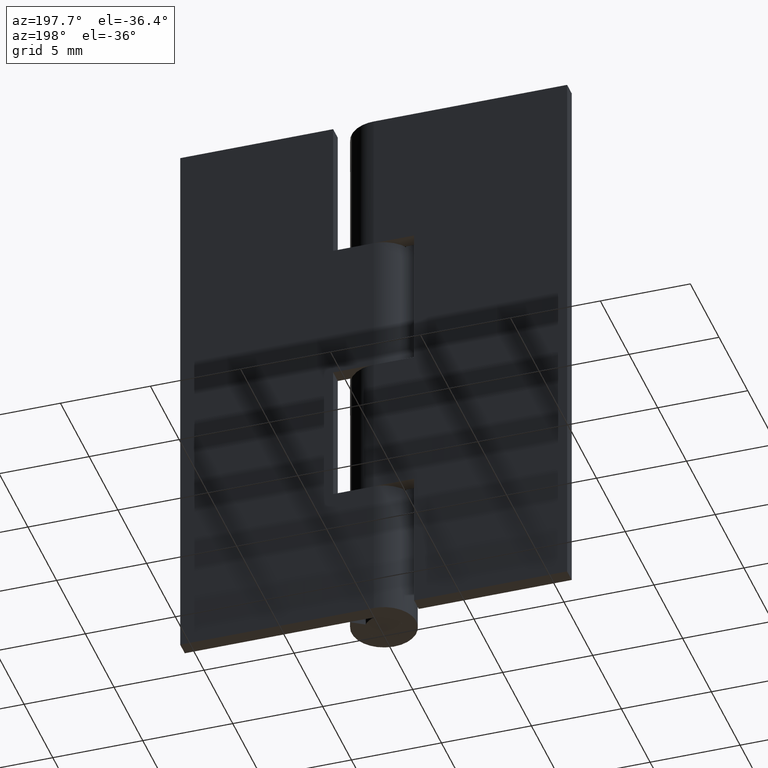
[diagram: clean part render]
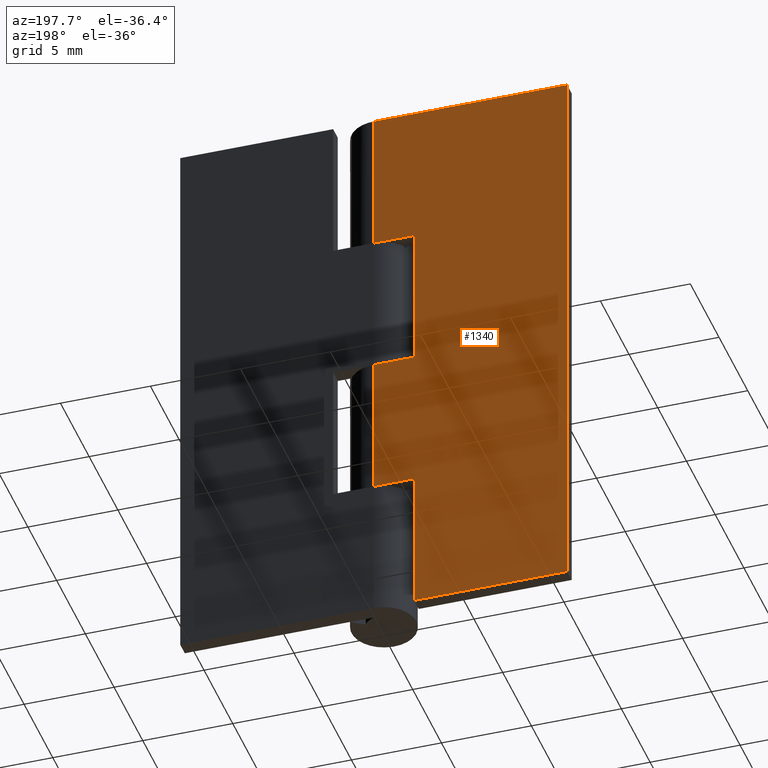
[diagram: same view with one face highlighted and labeled with its STEP entity id]
A machine part, auxiliary view. The second image highlights one B-rep face of the part: STEP entity #1340.
In plain terms, the highlighted face is a freeform B-spline surface patch.
Its self-contained STEP definition (entity closure, byte-faithful):
#739=CARTESIAN_POINT('',(-2.250000000000000,1.800003000000050,24.0));
#740=VERTEX_POINT('',#739);
#746=CARTESIAN_POINT('',(0.0,1.800003000000050,24.0));
#747=VERTEX_POINT('',#746);
#748=CARTESIAN_POINT('',(0.0,1.800003000000050,24.0));
#749=CARTESIAN_POINT('',(-2.250000000000000,1.800003000000050,24.0));
#750=QUASI_UNIFORM_CURVE('',1,(#748,#749),.UNSPECIFIED.,.F.,.U.);
#751=EDGE_CURVE('',#747,#740,#750,.T.);
#845=CARTESIAN_POINT('',(0.0,1.800003000000050,16.0));
#846=VERTEX_POINT('',#845);
#866=CARTESIAN_POINT('',(-2.250000000000000,1.800003000000050,16.0));
#867=VERTEX_POINT('',#866);
#868=CARTESIAN_POINT('',(-2.250000000000000,1.800003000000050,16.0));
#869=CARTESIAN_POINT('',(0.0,1.800003000000050,16.0));
#870=QUASI_UNIFORM_CURVE('',1,(#868,#869),.UNSPECIFIED.,.F.,.U.);
#871=EDGE_CURVE('',#867,#846,#870,.T.);
#892=CARTESIAN_POINT('',(-2.250000000000000,1.800003000000050,24.0));
#893=CARTESIAN_POINT('',(-2.250000000000000,1.800003000000050,16.0));
#894=QUASI_UNIFORM_CURVE('',1,(#892,#893),.UNSPECIFIED.,.F.,.U.);
#895=EDGE_CURVE('',#740,#867,#894,.T.);
#915=CARTESIAN_POINT('',(-2.250000000000000,1.800003000000050,0.0));
#916=VERTEX_POINT('',#915);
#922=CARTESIAN_POINT('',(-2.250000000000000,1.800003000000050,8.0));
#923=VERTEX_POINT('',#922);
#924=CARTESIAN_POINT('',(-2.250000000000000,1.800003000000050,8.0));
#925=CARTESIAN_POINT('',(-2.250000000000000,1.800003000000050,0.0));
#926=QUASI_UNIFORM_CURVE('',1,(#924,#925),.UNSPECIFIED.,.F.,.U.);
#927=EDGE_CURVE('',#923,#916,#926,.T.);
#950=CARTESIAN_POINT('',(0.0,1.800003000000050,8.0));
#951=VERTEX_POINT('',#950);
#952=CARTESIAN_POINT('',(0.0,1.800003000000050,8.0));
#953=CARTESIAN_POINT('',(-2.250000000000000,1.800003000000050,8.0));
#954=QUASI_UNIFORM_CURVE('',1,(#952,#953),.UNSPECIFIED.,.F.,.U.);
#955=EDGE_CURVE('',#951,#923,#954,.T.);
#1012=CARTESIAN_POINT('',(1.102148E-016,1.800003000000000,32.0));
#1013=VERTEX_POINT('',#1012);
#1014=CARTESIAN_POINT('',(-10.750000000000000,1.800003000000000,32.0));
#1015=VERTEX_POINT('',#1014);
#1016=CARTESIAN_POINT('',(1.102148E-016,1.800003000000000,32.0));
#1017=CARTESIAN_POINT('',(-10.750000000000000,1.800003000000000,32.0));
#1018=QUASI_UNIFORM_CURVE('',1,(#1016,#1017),.UNSPECIFIED.,.F.,.U.);
#1019=EDGE_CURVE('',#1013,#1015,#1018,.T.);
#1090=CARTESIAN_POINT('',(-10.750000000000000,1.800003000000000,0.0));
#1091=VERTEX_POINT('',#1090);
#1105=CARTESIAN_POINT('',(-10.750000000000000,1.800003000000000,32.0));
#1106=CARTESIAN_POINT('',(-10.750000000000000,1.800003000000000,0.0));
#1107=QUASI_UNIFORM_CURVE('',1,(#1105,#1106),.UNSPECIFIED.,.F.,.U.);
#1108=EDGE_CURVE('',#1015,#1091,#1107,.T.);
#1125=CARTESIAN_POINT('',(-2.250000000000000,1.800003000000050,0.0));
#1126=CARTESIAN_POINT('',(-10.750000000000000,1.800003000000000,0.0));
#1127=QUASI_UNIFORM_CURVE('',1,(#1125,#1126),.UNSPECIFIED.,.F.,.U.);
#1128=EDGE_CURVE('',#916,#1091,#1127,.T.);
#1156=CARTESIAN_POINT('',(1.102148E-016,1.800003000000000,32.0));
#1157=CARTESIAN_POINT('',(0.0,1.800003000000050,24.0));
#1158=QUASI_UNIFORM_CURVE('',1,(#1156,#1157),.UNSPECIFIED.,.F.,.U.);
#1159=EDGE_CURVE('',#1013,#747,#1158,.T.);
#1199=CARTESIAN_POINT('',(0.0,1.800003000000050,16.0));
#1200=CARTESIAN_POINT('',(0.0,1.800003000000050,8.0));
#1201=QUASI_UNIFORM_CURVE('',1,(#1199,#1200),.UNSPECIFIED.,.F.,.U.);
#1202=EDGE_CURVE('',#846,#951,#1201,.T.);
#1323=CARTESIAN_POINT('',(-11.286962479164410,1.800003000000000,33.598399937977788));
#1324=CARTESIAN_POINT('',(-11.286962479164410,1.800003000000000,-1.598400796284675));
#1325=CARTESIAN_POINT('',(0.536962767501883,1.800003000000000,33.598399937977788));
#1326=CARTESIAN_POINT('',(0.536962767501883,1.800003000000000,-1.598400796284675));
#1327=B_SPLINE_SURFACE_WITH_KNOTS('',1,1,((#1323,#1325),(#1324,#1326)),.UNSPECIFIED.,.F.,.F.,.U.,(2,2),(2,2),(0.0,35.196800734262460),(0.0,11.823925246666301),.UNSPECIFIED.);
#1328=ORIENTED_EDGE('',*,*,#871,.T.);
#1329=ORIENTED_EDGE('',*,*,#1202,.T.);
#1330=ORIENTED_EDGE('',*,*,#955,.T.);
#1331=ORIENTED_EDGE('',*,*,#927,.T.);
#1332=ORIENTED_EDGE('',*,*,#1128,.T.);
#1333=ORIENTED_EDGE('',*,*,#1108,.F.);
#1334=ORIENTED_EDGE('',*,*,#1019,.F.);
#1335=ORIENTED_EDGE('',*,*,#1159,.T.);
#1336=ORIENTED_EDGE('',*,*,#751,.T.);
#1337=ORIENTED_EDGE('',*,*,#895,.T.);
#1338=EDGE_LOOP('',(#1328,#1329,#1330,#1331,#1332,#1333,#1334,#1335,#1336,#1337));
#1339=FACE_OUTER_BOUND('',#1338,.T.);
#1340=ADVANCED_FACE('',(#1339),#1327,.F.);